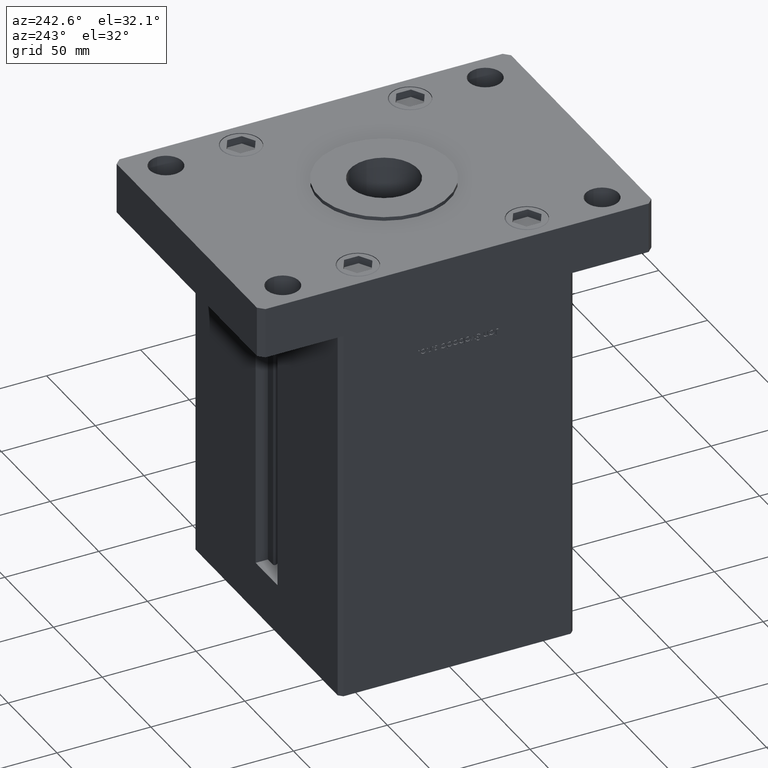
[diagram: clean part render]
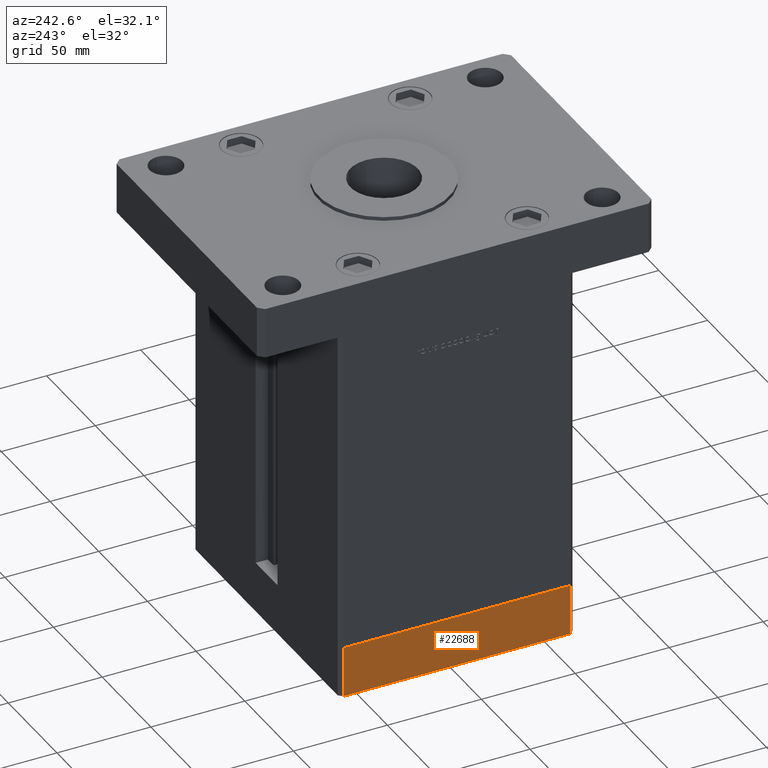
[diagram: same view with one face highlighted and labeled with its STEP entity id]
A machine part, auxiliary view. The second image highlights one B-rep face of the part: STEP entity #22688.
In plain terms, the highlighted planar face has unit normal (-1, 0, 0).
Its self-contained STEP definition (entity closure, byte-faithful):
#360 = LINE ( 'NONE', #37496, #4347 ) ;
#1356 = VECTOR ( 'NONE', #37553, 1000.000000000000000 ) ;
#1905 = EDGE_CURVE ( 'NONE', #24187, #22666, #360, .T. ) ;
#3423 = VECTOR ( 'NONE', #18316, 1000.000000000000000 ) ;
#3941 = AXIS2_PLACEMENT_3D ( 'NONE', #28613, #33500, #53546 ) ;
#4347 = VECTOR ( 'NONE', #16905, 1000.000000000000000 ) ;
#5840 = DIRECTION ( 'NONE',  ( 0.000000000000000000, 0.000000000000000000, 1.000000000000000000 ) ) ;
#7766 = VERTEX_POINT ( 'NONE', #40075 ) ;
#9882 = VERTEX_POINT ( 'NONE', #35067 ) ;
#10512 = CARTESIAN_POINT ( 'NONE',  ( 74.99999999999992895, 60.50000000000002842, 0.000000000000000000 ) ) ;
#16161 = FACE_OUTER_BOUND ( 'NONE', #34748, .T. ) ;
#16905 = DIRECTION ( 'NONE',  ( 0.000000000000000000, 0.000000000000000000, 1.000000000000000000 ) ) ;
#16978 = CARTESIAN_POINT ( 'NONE',  ( 75.00000000000001421, -60.50000000000000711, -27.00000000000000000 ) ) ;
#17240 = LINE ( 'NONE', #33498, #1356 ) ;
#18316 = DIRECTION ( 'NONE',  ( -6.881547673296424104E-16, 1.000000000000000000, 0.000000000000000000 ) ) ;
#22666 = VERTEX_POINT ( 'NONE', #10512 ) ;
#22688 = ADVANCED_FACE ( 'NONE', ( #16161 ), #45969, .T. ) ;
#24187 = VERTEX_POINT ( 'NONE', #35849 ) ;
#28613 = CARTESIAN_POINT ( 'NONE',  ( 75.00000000000001421, -60.50000000000000711, -27.00000000000000000 ) ) ;
#29999 = VECTOR ( 'NONE', #5840, 1000.000000000000000 ) ;
#30506 = LINE ( 'NONE', #42963, #3423 ) ;
#30940 = EDGE_CURVE ( 'NONE', #7766, #24187, #17240, .T. ) ;
#32009 = EDGE_CURVE ( 'NONE', #7766, #9882, #50840, .T. ) ;
#33498 = CARTESIAN_POINT ( 'NONE',  ( 75.00000000000001421, -60.50000000000000711, -27.00000000000000000 ) ) ;
#33500 = DIRECTION ( 'NONE',  ( 1.000000000000000000, 6.881547673296424104E-16, -0.000000000000000000 ) ) ;
#34748 = EDGE_LOOP ( 'NONE', ( #36172, #35422, #46092, #39338 ) ) ;
#35067 = CARTESIAN_POINT ( 'NONE',  ( 75.00000000000001421, -60.50000000000000711, 0.000000000000000000 ) ) ;
#35422 = ORIENTED_EDGE ( 'NONE', *, *, #32009, .F. ) ;
#35849 = CARTESIAN_POINT ( 'NONE',  ( 74.99999999999992895, 60.50000000000002842, -27.00000000000000000 ) ) ;
#36172 = ORIENTED_EDGE ( 'NONE', *, *, #50642, .F. ) ;
#37496 = CARTESIAN_POINT ( 'NONE',  ( 74.99999999999992895, 60.50000000000002842, -27.00000000000000000 ) ) ;
#37553 = DIRECTION ( 'NONE',  ( -6.881547673296424104E-16, 1.000000000000000000, 0.000000000000000000 ) ) ;
#39338 = ORIENTED_EDGE ( 'NONE', *, *, #1905, .T. ) ;
#40075 = CARTESIAN_POINT ( 'NONE',  ( 75.00000000000001421, -60.50000000000000711, -27.00000000000000000 ) ) ;
#42963 = CARTESIAN_POINT ( 'NONE',  ( 75.00000000000001421, -60.50000000000000711, 0.000000000000000000 ) ) ;
#45969 = PLANE ( 'NONE',  #3941 ) ;
#46092 = ORIENTED_EDGE ( 'NONE', *, *, #30940, .T. ) ;
#50642 = EDGE_CURVE ( 'NONE', #9882, #22666, #30506, .T. ) ;
#50840 = LINE ( 'NONE', #16978, #29999 ) ;
#53546 = DIRECTION ( 'NONE',  ( -6.881547673296424104E-16, 1.000000000000000000, 0.000000000000000000 ) ) ;